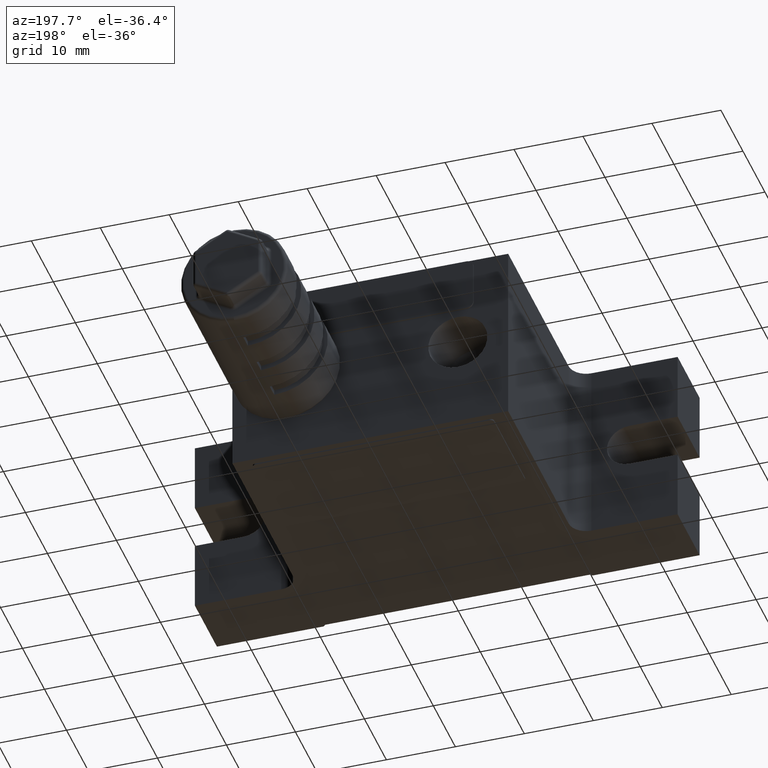
[diagram: clean part render]
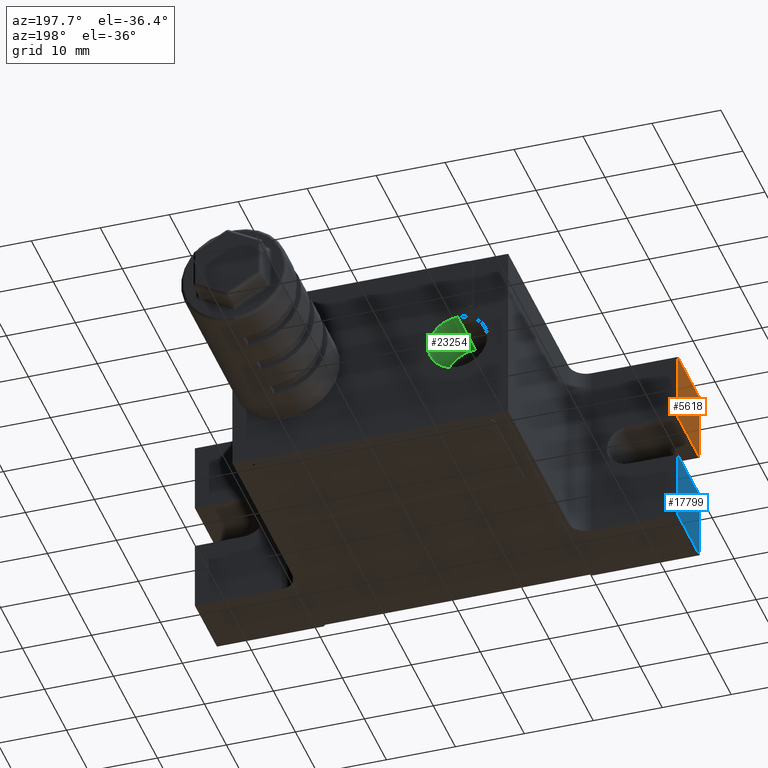
[diagram: same view with three faces highlighted in distinct colors, each labeled with its STEP entity id]
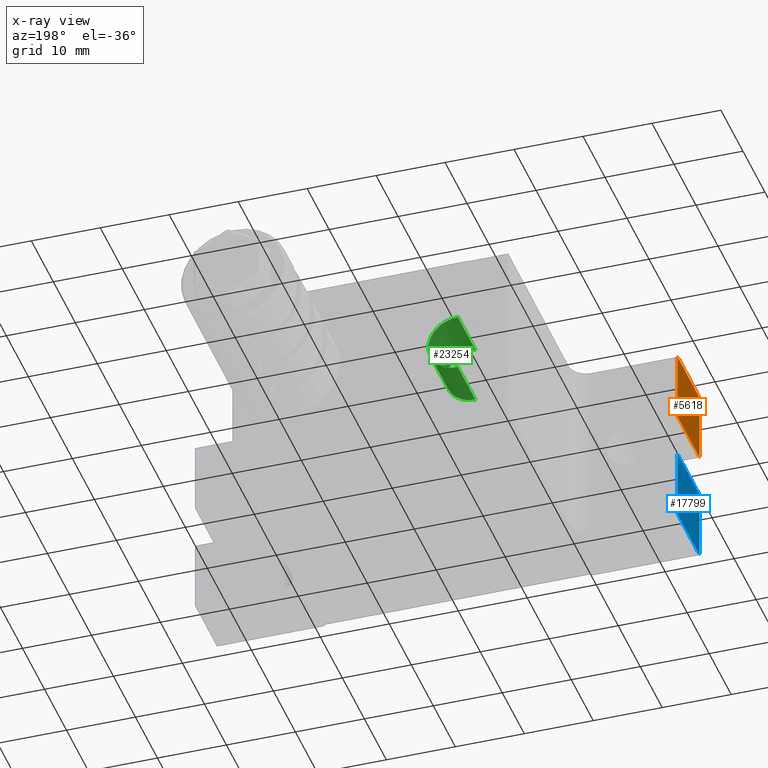
[diagram: x-ray of the same camera — body ghosted, the three highlighted faces saturated]
A machine part, auxiliary view with three faces highlighted in distinct colors.
The next image is the same camera in x-ray (body ghosted, the three faces saturated) — at least one of them is partly hidden behind the body in this view.
Their STEP definitions:

[orange] entity #5618 — the highlighted planar face has unit normal (1, 0, 0).
#1330 = PLANE ( 'NONE',  #15625 ) ;
#3171 = CARTESIAN_POINT ( 'NONE',  ( -35.00000000000000000, -20.00000000000000000, 13.50000000000000000 ) ) ;
#3447 = CARTESIAN_POINT ( 'NONE',  ( -35.00000000000000000, -20.00000000000000000, 3.250000000000000000 ) ) ;
#4204 = LINE ( 'NONE', #18202, #23699 ) ;
#4223 = LINE ( 'NONE', #10279, #13406 ) ;
#4239 = FACE_OUTER_BOUND ( 'NONE', #18429, .T. ) ;
#4616 = DIRECTION ( 'NONE',  ( 0.0000000000000000000, 0.0000000000000000000, 1.000000000000000000 ) ) ;
#5618 = ADVANCED_FACE ( 'NONE', ( #4239 ), #1330, .F. ) ;
#6697 = CARTESIAN_POINT ( 'NONE',  ( -35.00000000000000000, -20.00000000000000000, 13.50000000000000000 ) ) ;
#8480 = DIRECTION ( 'NONE',  ( 1.000000000000000000, 0.0000000000000000000, 0.0000000000000000000 ) ) ;
#8821 = DIRECTION ( 'NONE',  ( 0.0000000000000000000, 1.000000000000000000, 0.0000000000000000000 ) ) ;
#9635 = VERTEX_POINT ( 'NONE', #19538 ) ;
#9945 = DIRECTION ( 'NONE',  ( 0.0000000000000000000, -1.000000000000000000, 0.0000000000000000000 ) ) ;
#10174 = LINE ( 'NONE', #15706, #11906 ) ;
#10223 = EDGE_CURVE ( 'NONE', #10348, #17694, #4223, .T. ) ;
#10279 = CARTESIAN_POINT ( 'NONE',  ( -35.00000000000000000, -20.00000000000000000, 13.50000000000000000 ) ) ;
#10348 = VERTEX_POINT ( 'NONE', #21260 ) ;
#11906 = VECTOR ( 'NONE', #4616, 1000.000000000000000 ) ;
#12232 = CARTESIAN_POINT ( 'NONE',  ( -35.00000000000000000, -20.00000000000000000, 3.250000000000000000 ) ) ;
#12459 = EDGE_CURVE ( 'NONE', #21481, #9635, #21324, .T. ) ;
#13406 = VECTOR ( 'NONE', #9945, 1000.000000000000000 ) ;
#14106 = ORIENTED_EDGE ( 'NONE', *, *, #18875, .F. ) ;
#14107 = ORIENTED_EDGE ( 'NONE', *, *, #12459, .F. ) ;
#14261 = ORIENTED_EDGE ( 'NONE', *, *, #10223, .F. ) ;
#14651 = DIRECTION ( 'NONE',  ( 0.0000000000000000000, 0.0000000000000000000, -1.000000000000000000 ) ) ;
#15625 = AXIS2_PLACEMENT_3D ( 'NONE', #3171, #8480, #17872 ) ;
#15706 = CARTESIAN_POINT ( 'NONE',  ( -35.00000000000000000, -10.00000000000000000, -13.50000000000000000 ) ) ;
#17694 = VERTEX_POINT ( 'NONE', #6697 ) ;
#17872 = DIRECTION ( 'NONE',  ( 0.0000000000000000000, 0.0000000000000000000, -1.000000000000000000 ) ) ;
#17906 = VECTOR ( 'NONE', #8821, 1000.000000000000000 ) ;
#18202 = CARTESIAN_POINT ( 'NONE',  ( -35.00000000000000000, -20.00000000000000000, 13.50000000000000000 ) ) ;
#18429 = EDGE_LOOP ( 'NONE', ( #20335, #14107, #14106, #14261 ) ) ;
#18875 = EDGE_CURVE ( 'NONE', #17694, #21481, #4204, .T. ) ;
#19538 = CARTESIAN_POINT ( 'NONE',  ( -35.00000000000000000, -10.00000000000000000, 3.250000000000000000 ) ) ;
#20335 = ORIENTED_EDGE ( 'NONE', *, *, #21032, .F. ) ;
#21032 = EDGE_CURVE ( 'NONE', #9635, #10348, #10174, .T. ) ;
#21260 = CARTESIAN_POINT ( 'NONE',  ( -35.00000000000000000, -10.00000000000000000, 13.50000000000000000 ) ) ;
#21324 = LINE ( 'NONE', #3447, #17906 ) ;
#21481 = VERTEX_POINT ( 'NONE', #12232 ) ;
#23699 = VECTOR ( 'NONE', #14651, 1000.000000000000000 ) ;

[blue] entity #17799 — the highlighted planar face has unit normal (1, 0, 0).
#102 = EDGE_CURVE ( 'NONE', #22197, #10006, #13806, .T. ) ;
#364 = CARTESIAN_POINT ( 'NONE',  ( -35.00000000000000000, -10.00000000000000000, -3.250000000000000000 ) ) ;
#880 = LINE ( 'NONE', #17879, #5787 ) ;
#960 = LINE ( 'NONE', #5271, #20484 ) ;
#2163 = CARTESIAN_POINT ( 'NONE',  ( -35.00000000000000000, -10.00000000000000000, -13.50000000000000000 ) ) ;
#3962 = EDGE_CURVE ( 'NONE', #16291, #10006, #12099, .T. ) ;
#4923 = DIRECTION ( 'NONE',  ( 0.0000000000000000000, 0.0000000000000000000, -1.000000000000000000 ) ) ;
#5271 = CARTESIAN_POINT ( 'NONE',  ( -35.00000000000000000, -20.00000000000000000, 13.50000000000000000 ) ) ;
#5332 = ORIENTED_EDGE ( 'NONE', *, *, #3962, .F. ) ;
#5339 = ORIENTED_EDGE ( 'NONE', *, *, #13850, .T. ) ;
#5633 = FACE_OUTER_BOUND ( 'NONE', #9144, .T. ) ;
#5787 = VECTOR ( 'NONE', #16113, 1000.000000000000000 ) ;
#8046 = VECTOR ( 'NONE', #12651, 1000.000000000000000 ) ;
#9144 = EDGE_LOOP ( 'NONE', ( #22918, #23305, #5332, #5339 ) ) ;
#10006 = VERTEX_POINT ( 'NONE', #364 ) ;
#10087 = DIRECTION ( 'NONE',  ( 0.0000000000000000000, 1.000000000000000000, 0.0000000000000000000 ) ) ;
#10631 = PLANE ( 'NONE',  #16796 ) ;
#10931 = VECTOR ( 'NONE', #10087, 1000.000000000000000 ) ;
#12099 = LINE ( 'NONE', #23467, #8046 ) ;
#12651 = DIRECTION ( 'NONE',  ( 0.0000000000000000000, 0.0000000000000000000, 1.000000000000000000 ) ) ;
#13176 = CARTESIAN_POINT ( 'NONE',  ( -35.00000000000000000, -20.00000000000000000, -3.250000000000000000 ) ) ;
#13283 = CARTESIAN_POINT ( 'NONE',  ( -35.00000000000000000, -20.00000000000000000, -13.50000000000000000 ) ) ;
#13806 = LINE ( 'NONE', #21065, #10931 ) ;
#13850 = EDGE_CURVE ( 'NONE', #16291, #21795, #880, .T. ) ;
#14504 = DIRECTION ( 'NONE',  ( 0.0000000000000000000, 0.0000000000000000000, -1.000000000000000000 ) ) ;
#16113 = DIRECTION ( 'NONE',  ( 0.0000000000000000000, -1.000000000000000000, 0.0000000000000000000 ) ) ;
#16258 = DIRECTION ( 'NONE',  ( 1.000000000000000000, 0.0000000000000000000, 0.0000000000000000000 ) ) ;
#16291 = VERTEX_POINT ( 'NONE', #2163 ) ;
#16796 = AXIS2_PLACEMENT_3D ( 'NONE', #23543, #16258, #4923 ) ;
#17799 = ADVANCED_FACE ( 'NONE', ( #5633 ), #10631, .F. ) ;
#17879 = CARTESIAN_POINT ( 'NONE',  ( -35.00000000000000000, -20.00000000000000000, -13.50000000000000000 ) ) ;
#20484 = VECTOR ( 'NONE', #14504, 1000.000000000000000 ) ;
#21065 = CARTESIAN_POINT ( 'NONE',  ( -35.00000000000000000, -20.00000000000000000, -3.250000000000000000 ) ) ;
#21146 = EDGE_CURVE ( 'NONE', #22197, #21795, #960, .T. ) ;
#21795 = VERTEX_POINT ( 'NONE', #13283 ) ;
#22197 = VERTEX_POINT ( 'NONE', #13176 ) ;
#22918 = ORIENTED_EDGE ( 'NONE', *, *, #21146, .F. ) ;
#23305 = ORIENTED_EDGE ( 'NONE', *, *, #102, .T. ) ;
#23467 = CARTESIAN_POINT ( 'NONE',  ( -35.00000000000000000, -10.00000000000000000, -13.50000000000000000 ) ) ;
#23543 = CARTESIAN_POINT ( 'NONE',  ( -35.00000000000000000, -20.00000000000000000, 13.50000000000000000 ) ) ;

[green] entity #23254 — the highlighted cylindrical surface (edge-blend (fillet) strip) has radius 4.283 mm, axis along (0, 1, 0).
#32 = EDGE_CURVE ( 'NONE', #14881, #23041, #12082, .T. ) ;
#502 = CARTESIAN_POINT ( 'NONE',  ( -12.69999999999999900, 12.00000000000000000, 0.0000000000000000000 ) ) ;
#1884 = LINE ( 'NONE', #23774, #16584 ) ;
#1898 = VECTOR ( 'NONE', #18773, 1000.000000000000000 ) ;
#1999 = ORIENTED_EDGE ( 'NONE', *, *, #6602, .T. ) ;
#3118 = CYLINDRICAL_SURFACE ( 'NONE', #17008, 4.283000000000000400 ) ;
#6602 = EDGE_CURVE ( 'NONE', #14881, #23460, #1884, .T. ) ;
#7365 = LINE ( 'NONE', #12882, #1898 ) ;
#7556 = VERTEX_POINT ( 'NONE', #9395 ) ;
#8492 = ORIENTED_EDGE ( 'NONE', *, *, #32, .F. ) ;
#8643 = AXIS2_PLACEMENT_3D ( 'NONE', #15405, #15322, #9941 ) ;
#9395 = CARTESIAN_POINT ( 'NONE',  ( -12.69999999999999900, 20.00000000000000000, -4.283000000000000400 ) ) ;
#9941 = DIRECTION ( 'NONE',  ( 0.0000000000000000000, 0.0000000000000000000, 1.000000000000000000 ) ) ;
#9983 = EDGE_CURVE ( 'NONE', #23041, #7556, #7365, .T. ) ;
#10980 = ORIENTED_EDGE ( 'NONE', *, *, #15475, .T. ) ;
#11276 = CARTESIAN_POINT ( 'NONE',  ( -12.69999999999999900, 12.00000000000000000, 4.283000000000000400 ) ) ;
#12082 = CIRCLE ( 'NONE', #22952, 4.283000000000000400 ) ;
#12882 = CARTESIAN_POINT ( 'NONE',  ( -12.69999999999999900, 20.00000000000000000, -4.283000000000000400 ) ) ;
#12970 = DIRECTION ( 'NONE',  ( 0.0000000000000000000, 0.0000000000000000000, 1.000000000000000000 ) ) ;
#13794 = CARTESIAN_POINT ( 'NONE',  ( -12.69999999999999900, 12.00000000000000000, -4.283000000000000400 ) ) ;
#14580 = DIRECTION ( 'NONE',  ( 0.0000000000000000000, 1.000000000000000000, 0.0000000000000000000 ) ) ;
#14881 = VERTEX_POINT ( 'NONE', #11276 ) ;
#15231 = DIRECTION ( 'NONE',  ( 0.0000000000000000000, 0.0000000000000000000, 1.000000000000000000 ) ) ;
#15322 = DIRECTION ( 'NONE',  ( 0.0000000000000000000, 1.000000000000000000, 0.0000000000000000000 ) ) ;
#15405 = CARTESIAN_POINT ( 'NONE',  ( -12.69999999999999900, 20.00000000000000000, 0.0000000000000000000 ) ) ;
#15475 = EDGE_CURVE ( 'NONE', #23460, #7556, #20353, .T. ) ;
#16584 = VECTOR ( 'NONE', #22326, 1000.000000000000000 ) ;
#17008 = AXIS2_PLACEMENT_3D ( 'NONE', #23716, #14580, #12970 ) ;
#18773 = DIRECTION ( 'NONE',  ( 0.0000000000000000000, 1.000000000000000000, 0.0000000000000000000 ) ) ;
#19047 = CARTESIAN_POINT ( 'NONE',  ( -12.69999999999999900, 20.00000000000000000, 4.283000000000000400 ) ) ;
#19505 = ORIENTED_EDGE ( 'NONE', *, *, #9983, .F. ) ;
#19574 = EDGE_LOOP ( 'NONE', ( #19505, #8492, #1999, #10980 ) ) ;
#20353 = CIRCLE ( 'NONE', #8643, 4.283000000000000400 ) ;
#22269 = DIRECTION ( 'NONE',  ( 0.0000000000000000000, 1.000000000000000000, 0.0000000000000000000 ) ) ;
#22326 = DIRECTION ( 'NONE',  ( 0.0000000000000000000, 1.000000000000000000, 0.0000000000000000000 ) ) ;
#22351 = FACE_OUTER_BOUND ( 'NONE', #19574, .T. ) ;
#22952 = AXIS2_PLACEMENT_3D ( 'NONE', #502, #22269, #15231 ) ;
#23041 = VERTEX_POINT ( 'NONE', #13794 ) ;
#23254 = ADVANCED_FACE ( 'NONE', ( #22351 ), #3118, .F. ) ;
#23460 = VERTEX_POINT ( 'NONE', #19047 ) ;
#23716 = CARTESIAN_POINT ( 'NONE',  ( -12.69999999999999900, 20.00000000000000000, 0.0000000000000000000 ) ) ;
#23774 = CARTESIAN_POINT ( 'NONE',  ( -12.69999999999999900, 20.00000000000000000, 4.283000000000000400 ) ) ;